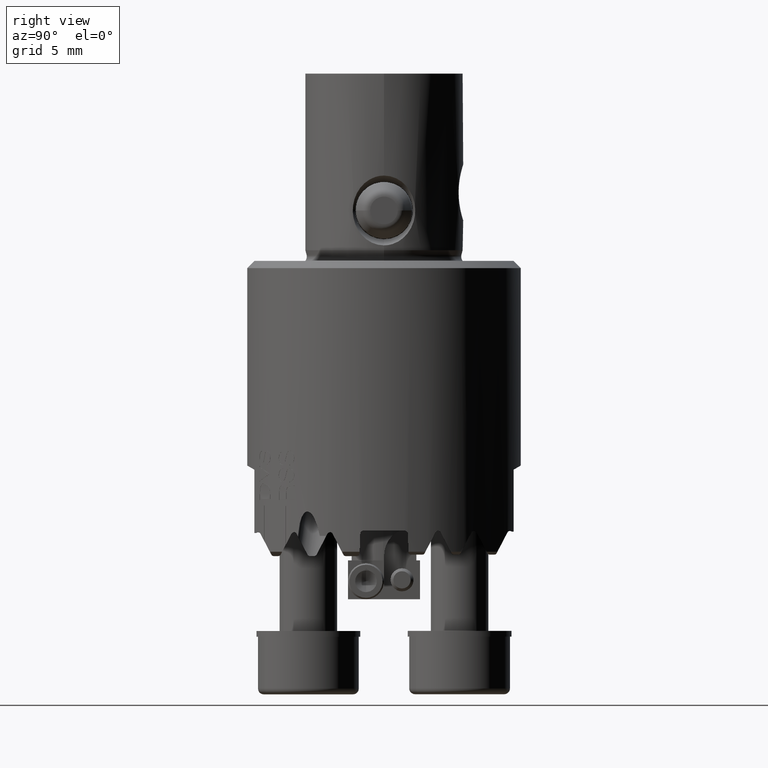
[diagram: clean part render]
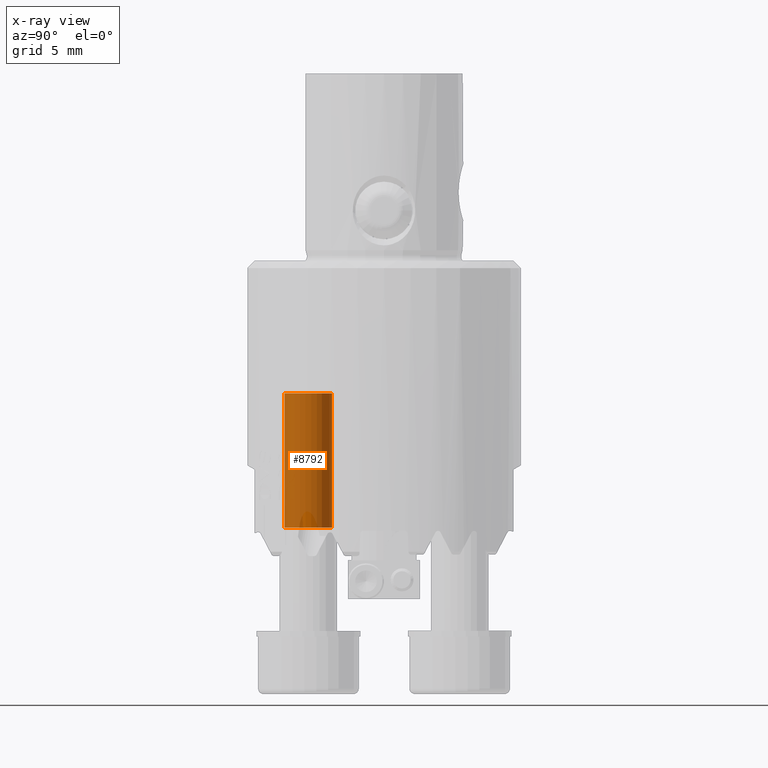
[diagram: x-ray — body ghosted, one internal face saturated and labeled with its STEP entity id]
A machine part, right view, then the same camera in x-ray: the body is ghosted and one INTERNAL B-rep face — a face not visible from any outside direction — is saturated and labeled: STEP entity #8792.
In plain terms, the highlighted cylindrical surface (edge-blend (fillet) strip) has radius 1.65 mm, axis along (-0, -0, 1).
Its self-contained STEP definition (entity closure, byte-faithful):
#5354=EDGE_CURVE('Kante120',#7946,#8708,#12199,.T.);
#5412=EDGE_CURVE('Kante232',#6304,#6686,#12263,.T.);
#5622=EDGE_CURVE('NONE',#6686,#8708,#12488,.T.);
#6030=EDGE_CURVE('NONE',#6304,#7946,#12960,.T.);
#6304=VERTEX_POINT('NONE',#13259);
#6686=VERTEX_POINT('NONE',#13694);
#7946=VERTEX_POINT('NONE',#15070);
#8708=VERTEX_POINT('NONE',#15908);
#8792=ADVANCED_FACE('NONE',(#16008),#16009,.F.);
#12199=CIRCLE('',#27846,1.65);
#12263=CIRCLE('',#27938,1.65);
#12488=LINE('',#28433,#28434);
#12960=LINE('',#30694,#30695);
#13259=CARTESIAN_POINT('',(-0.499999999999952,-6.9,-18.5362133945802));
#13694=CARTESIAN_POINT('',(-0.499999999999975,-3.6,-18.5362133945802));
#15070=CARTESIAN_POINT('',(-0.499999999999952,-6.9,-9.21));
#15908=CARTESIAN_POINT('',(-0.499999999999975,-3.6,-9.21));
#16008=FACE_OUTER_BOUND('',#41938,.T.);
#16009=CYLINDRICAL_SURFACE('',#41939,1.65);
#27846=AXIS2_PLACEMENT_3D('',#48073,#48074,#48075);
#27938=AXIS2_PLACEMENT_3D('',#48146,#48147,#48148);
#28433=CARTESIAN_POINT('',(-0.499999999999975,-3.6,-5.60339797289477));
#28434=VECTOR('',#48335,1000.0);
#30694=CARTESIAN_POINT('',(-0.499999999999952,-6.9,-5.60339797289477));
#30695=VECTOR('',#48971,1000.0);
#41938=EDGE_LOOP('',(#52191,#52192,#52193,#52194));
#41939=AXIS2_PLACEMENT_3D('',#52195,#52196,#52197);
#48073=CARTESIAN_POINT('',(-0.499999999999964,-5.25,-9.21));
#48074=DIRECTION('',(0.0,0.0,1.0));
#48075=DIRECTION('',(-6.93748557554969E-015,1.0,0.0));
#48146=CARTESIAN_POINT('',(-0.499999999999964,-5.25,-18.5362133945802));
#48147=DIRECTION('',(0.0,0.0,1.0));
#48148=DIRECTION('',(-6.93748557554969E-015,1.0,0.0));
#48335=DIRECTION('',(0.0,0.0,1.0));
#48971=DIRECTION('',(0.0,0.0,1.0));
#52191=ORIENTED_EDGE('',*,*,#5412,.F.);
#52192=ORIENTED_EDGE('',*,*,#6030,.T.);
#52193=ORIENTED_EDGE('',*,*,#5354,.T.);
#52194=ORIENTED_EDGE('',*,*,#5622,.F.);
#52195=CARTESIAN_POINT('',(-0.499999999999964,-5.25,-5.60339797289477));
#52196=DIRECTION('',(-0.0,-0.0,1.0));
#52197=DIRECTION('',(-6.93748557554969E-015,1.0,0.0));